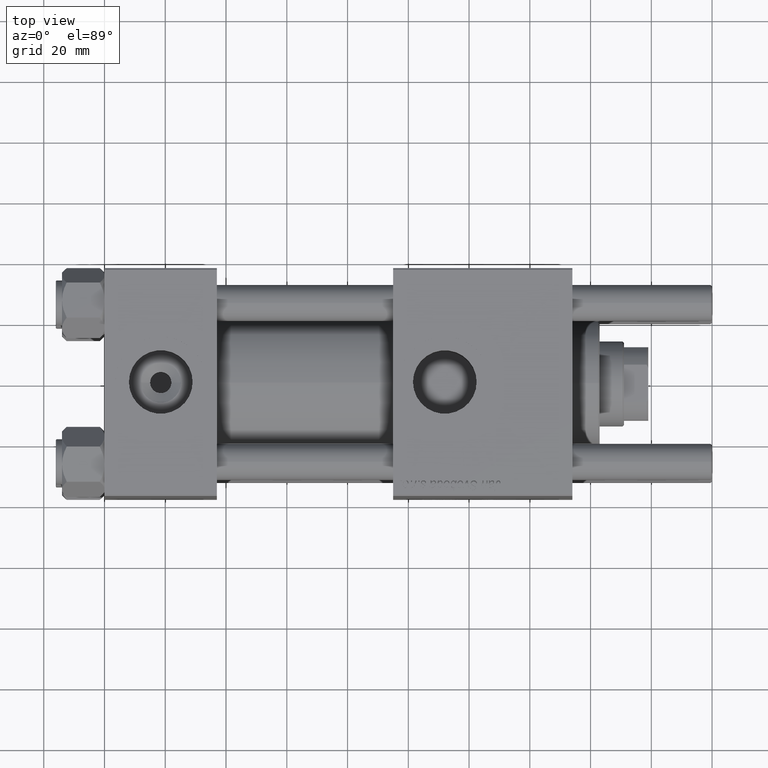
[diagram: clean part render]
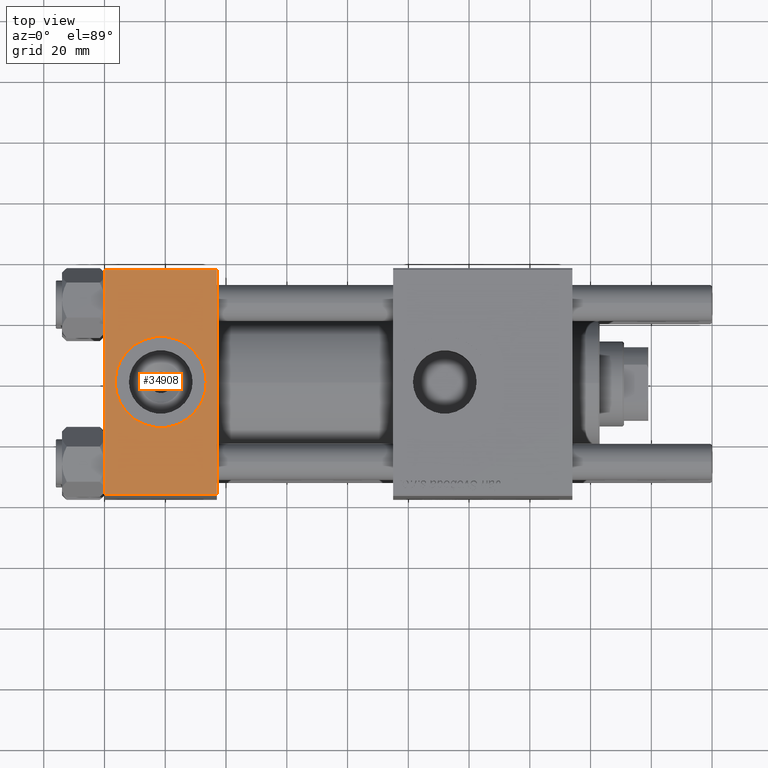
[diagram: same view with one face highlighted and labeled with its STEP entity id]
A machine part, top view. The second image highlights one B-rep face of the part: STEP entity #34908.
In plain terms, the highlighted planar face has unit normal (0, 0, -1).
Its self-contained STEP definition (entity closure, byte-faithful):
#290 = CARTESIAN_POINT ( 'NONE',  ( 0.000000000000000000, 37.49999999999999289, 37.50000000000000000 ) ) ;
#1261 = EDGE_CURVE ( 'NONE', #3033, #42732, #2755, .T. ) ;
#2023 = ORIENTED_EDGE ( 'NONE', *, *, #4099, .T. ) ;
#2219 = CARTESIAN_POINT ( 'NONE',  ( 37.00000000000000000, -37.00000000000000711, 37.49999999999999289 ) ) ;
#2279 = VERTEX_POINT ( 'NONE', #30538 ) ;
#2755 = LINE ( 'NONE', #55789, #31811 ) ;
#3033 = VERTEX_POINT ( 'NONE', #36978 ) ;
#3958 = VECTOR ( 'NONE', #35817, 1000.000000000000000 ) ;
#4099 = EDGE_CURVE ( 'NONE', #3033, #2279, #5535, .T. ) ;
#5535 = LINE ( 'NONE', #53431, #9626 ) ;
#5590 = CARTESIAN_POINT ( 'NONE',  ( 18.50000000000000000, -5.204170427930421283E-15, 37.50000000000000000 ) ) ;
#5692 = AXIS2_PLACEMENT_3D ( 'NONE', #51861, #12566, #43256 ) ;
#7048 = EDGE_LOOP ( 'NONE', ( #46336, #44869, #8985, #2023 ) ) ;
#8265 = FACE_BOUND ( 'NONE', #44859, .T. ) ;
#8985 = ORIENTED_EDGE ( 'NONE', *, *, #1261, .F. ) ;
#9626 = VECTOR ( 'NONE', #23013, 1000.000000000000000 ) ;
#10087 = CARTESIAN_POINT ( 'NONE',  ( 0.000000000000000000, -37.00000000000000711, 37.49999999999999289 ) ) ;
#11783 = AXIS2_PLACEMENT_3D ( 'NONE', #39752, #25984, #35438 ) ;
#11941 = AXIS2_PLACEMENT_3D ( 'NONE', #5590, #27089, #14760 ) ;
#12566 = DIRECTION ( 'NONE',  ( 0.000000000000000000, 9.251858538542971581E-17, -1.000000000000000000 ) ) ;
#12893 = LINE ( 'NONE', #290, #3958 ) ;
#14760 = DIRECTION ( 'NONE',  ( 1.000000000000000000, 0.000000000000000000, 0.000000000000000000 ) ) ;
#16884 = PLANE ( 'NONE',  #5692 ) ;
#16910 = ORIENTED_EDGE ( 'NONE', *, *, #19563, .F. ) ;
#18316 = CARTESIAN_POINT ( 'NONE',  ( 33.50000000000000000, -5.204170427930421283E-15, 37.50000000000000000 ) ) ;
#19563 = EDGE_CURVE ( 'NONE', #20801, #22579, #36520, .T. ) ;
#19691 = DIRECTION ( 'NONE',  ( 1.000000000000000000, 0.000000000000000000, 0.000000000000000000 ) ) ;
#20801 = VERTEX_POINT ( 'NONE', #21732 ) ;
#21732 = CARTESIAN_POINT ( 'NONE',  ( 3.499999999999997780, -3.367200229209391300E-15, 37.50000000000000000 ) ) ;
#22579 = VERTEX_POINT ( 'NONE', #18316 ) ;
#23013 = DIRECTION ( 'NONE',  ( -1.000000000000000000, 0.000000000000000000, 0.000000000000000000 ) ) ;
#25575 = EDGE_CURVE ( 'NONE', #22579, #20801, #29344, .T. ) ;
#25984 = DIRECTION ( 'NONE',  ( 0.000000000000000000, 0.000000000000000000, 1.000000000000000000 ) ) ;
#26090 = ORIENTED_EDGE ( 'NONE', *, *, #25575, .F. ) ;
#27089 = DIRECTION ( 'NONE',  ( 0.000000000000000000, 0.000000000000000000, 1.000000000000000000 ) ) ;
#28604 = CARTESIAN_POINT ( 'NONE',  ( 37.00000000000000000, -37.00000000000000711, 37.49999999999999289 ) ) ;
#29344 = CIRCLE ( 'NONE', #11941, 15.00000000000000355 ) ;
#29692 = DIRECTION ( 'NONE',  ( 0.000000000000000000, -1.000000000000000000, -9.251858538542971581E-17 ) ) ;
#30538 = CARTESIAN_POINT ( 'NONE',  ( 0.000000000000000000, 36.99999999999999289, 37.50000000000000000 ) ) ;
#31811 = VECTOR ( 'NONE', #29692, 1000.000000000000000 ) ;
#33461 = VERTEX_POINT ( 'NONE', #10087 ) ;
#34908 = ADVANCED_FACE ( 'NONE', ( #8265, #48130 ), #16884, .F. ) ;
#35438 = DIRECTION ( 'NONE',  ( 1.000000000000000000, 0.000000000000000000, 0.000000000000000000 ) ) ;
#35817 = DIRECTION ( 'NONE',  ( 0.000000000000000000, -1.000000000000000000, -9.251858538542971581E-17 ) ) ;
#36520 = CIRCLE ( 'NONE', #11783, 15.00000000000000355 ) ;
#36978 = CARTESIAN_POINT ( 'NONE',  ( 37.00000000000000000, 36.99999999999999289, 37.50000000000000000 ) ) ;
#39752 = CARTESIAN_POINT ( 'NONE',  ( 18.50000000000000000, -5.204170427930421283E-15, 37.50000000000000000 ) ) ;
#40659 = LINE ( 'NONE', #2219, #56223 ) ;
#42732 = VERTEX_POINT ( 'NONE', #28604 ) ;
#43256 = DIRECTION ( 'NONE',  ( 0.000000000000000000, 1.000000000000000000, 9.251858538542971581E-17 ) ) ;
#44859 = EDGE_LOOP ( 'NONE', ( #26090, #16910 ) ) ;
#44869 = ORIENTED_EDGE ( 'NONE', *, *, #54378, .T. ) ;
#46336 = ORIENTED_EDGE ( 'NONE', *, *, #51650, .T. ) ;
#48130 = FACE_OUTER_BOUND ( 'NONE', #7048, .T. ) ;
#51650 = EDGE_CURVE ( 'NONE', #2279, #33461, #12893, .T. ) ;
#51861 = CARTESIAN_POINT ( 'NONE',  ( 37.00000000000000000, 37.49999999999999289, 37.50000000000000000 ) ) ;
#53431 = CARTESIAN_POINT ( 'NONE',  ( 0.000000000000000000, 36.99999999999999289, 37.50000000000000000 ) ) ;
#54378 = EDGE_CURVE ( 'NONE', #33461, #42732, #40659, .T. ) ;
#55789 = CARTESIAN_POINT ( 'NONE',  ( 37.00000000000000000, 37.49999999999999289, 37.50000000000000000 ) ) ;
#56223 = VECTOR ( 'NONE', #19691, 1000.000000000000000 ) ;